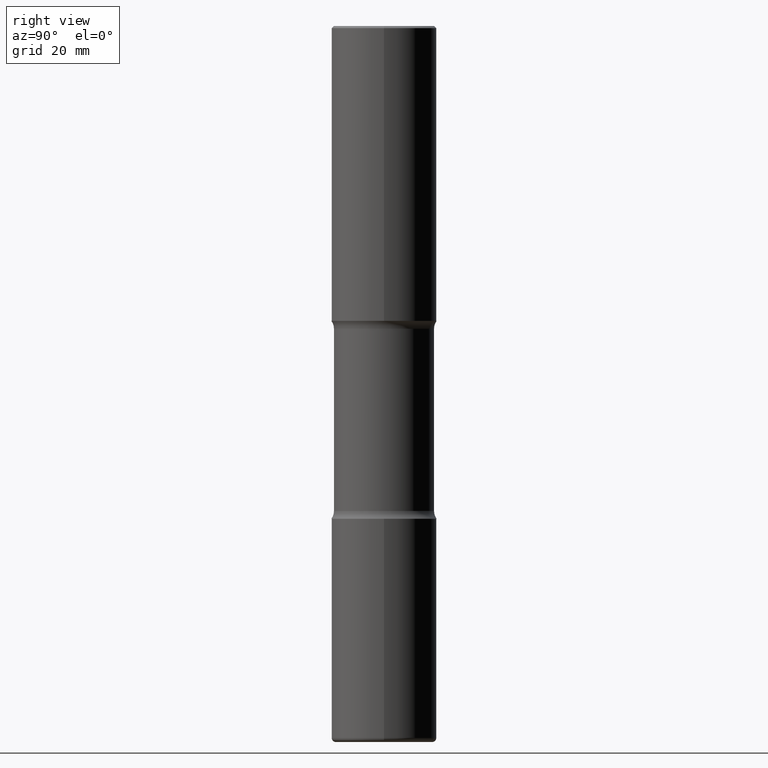
[diagram: clean part render]
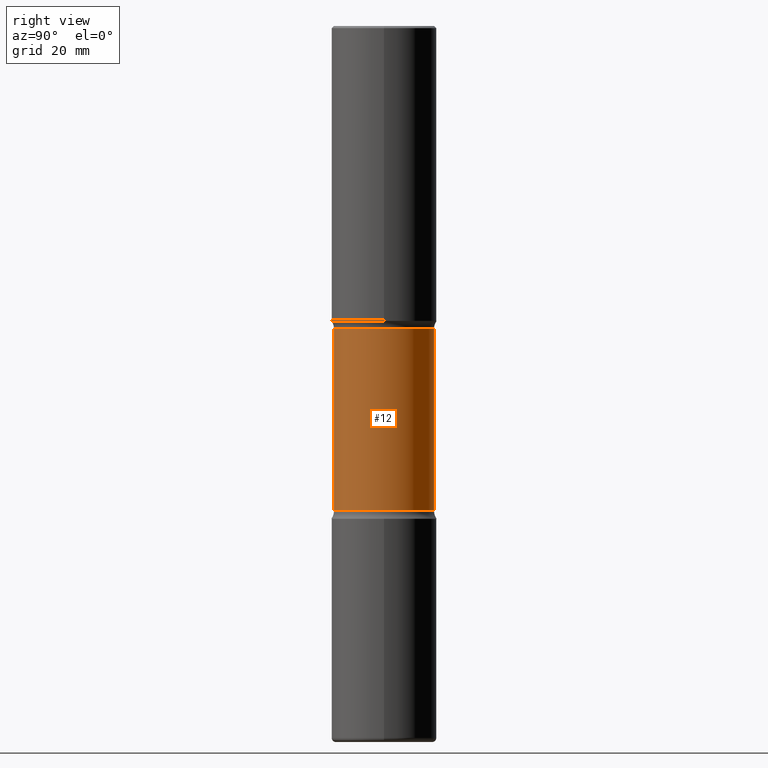
[diagram: same view with one face highlighted and labeled with its STEP entity id]
A machine part, right view. The second image highlights one B-rep face of the part: STEP entity #12.
In plain terms, the highlighted cylindrical surface (partial cylindrical patch) has radius 11.8745 mm, axis along (0, -0, -1).
Its self-contained STEP definition (entity closure, byte-faithful):
#4 = CARTESIAN_POINT ( 'NONE',  ( -3.291838451780614217E-15, -0.4675000000000157918, -4.531768949423744530 ) ) ;
#12 = ADVANCED_FACE ( 'NONE', ( #78 ), #295, .T. ) ;
#71 = CARTESIAN_POINT ( 'NONE',  ( 1.643714159041834644E-28, -2.326808706250185533E-14, -6.692899999999998961 ) ) ;
#78 = FACE_OUTER_BOUND ( 'NONE', #163, .T. ) ;
#79 = ORIENTED_EDGE ( 'NONE', *, *, #445, .F. ) ;
#92 = AXIS2_PLACEMENT_3D ( 'NONE', #71, #253, #167 ) ;
#100 = CARTESIAN_POINT ( 'NONE',  ( 1.107980415843712738E-28, -1.582616033701247086E-14, -4.531768949423746307 ) ) ;
#102 = DIRECTION ( 'NONE',  ( 2.478950746902978790E-29, -3.443533294061476764E-15, -1.000000000000000000 ) ) ;
#132 = DIRECTION ( 'NONE',  ( 2.478950746902979070E-29, -3.443533294061476764E-15, -1.000000000000000000 ) ) ;
#136 = LINE ( 'NONE', #341, #529 ) ;
#144 = ORIENTED_EDGE ( 'NONE', *, *, #184, .F. ) ;
#163 = EDGE_LOOP ( 'NONE', ( #171, #446, #79, #144 ) ) ;
#165 = VECTOR ( 'NONE', #392, 39.37007874015748143 ) ;
#167 = DIRECTION ( 'NONE',  ( 6.982962677686265922E-15, 1.000000000000000000, -2.337410048054985186E-15 ) ) ;
#171 = ORIENTED_EDGE ( 'NONE', *, *, #402, .T. ) ;
#184 = EDGE_CURVE ( 'NONE', #192, #359, #225, .T. ) ;
#190 = DIRECTION ( 'NONE',  ( 6.982962677686266711E-15, 1.000000000000000000, -3.506115072082477581E-15 ) ) ;
#192 = VERTEX_POINT ( 'NONE', #515 ) ;
#225 = LINE ( 'NONE', #384, #165 ) ;
#241 = CARTESIAN_POINT ( 'NONE',  ( 3.264535051818439654E-15, 0.4674999999999840949, -4.531768949423748083 ) ) ;
#253 = DIRECTION ( 'NONE',  ( 2.478950746902978790E-29, -3.443533294061476764E-15, -1.000000000000000000 ) ) ;
#268 = EDGE_CURVE ( 'NONE', #413, #305, #136, .T. ) ;
#295 = CYLINDRICAL_SURFACE ( 'NONE', #92, 0.4674999999999998601 ) ;
#305 = VERTEX_POINT ( 'NONE', #4 ) ;
#309 = AXIS2_PLACEMENT_3D ( 'NONE', #317, #102, #190 ) ;
#317 = CARTESIAN_POINT ( 'NONE',  ( 6.862271303354788236E-29, -9.967546637882530720E-15, -2.830431050576252883 ) ) ;
#338 = CIRCLE ( 'NONE', #309, 0.4674999999999999156 ) ;
#341 = CARTESIAN_POINT ( 'NONE',  ( -3.207282813958025392E-15, -0.4675000000000231748, -6.692899999999998073 ) ) ;
#352 = DIRECTION ( 'NONE',  ( 2.478950746902978790E-29, -3.443533294061476764E-15, -1.000000000000000000 ) ) ;
#359 = VERTEX_POINT ( 'NONE', #241 ) ;
#363 = CIRCLE ( 'NONE', #485, 0.4674999999999999156 ) ;
#384 = CARTESIAN_POINT ( 'NONE',  ( 3.264535051818492903E-15, 0.4674999999999766009, -6.692899999999999849 ) ) ;
#392 = DIRECTION ( 'NONE',  ( 2.478950746902979070E-29, -3.443533294061476764E-15, -1.000000000000000000 ) ) ;
#402 = EDGE_CURVE ( 'NONE', #192, #413, #338, .T. ) ;
#413 = VERTEX_POINT ( 'NONE', #528 ) ;
#445 = EDGE_CURVE ( 'NONE', #359, #305, #363, .T. ) ;
#446 = ORIENTED_EDGE ( 'NONE', *, *, #268, .T. ) ;
#485 = AXIS2_PLACEMENT_3D ( 'NONE', #100, #352, #488 ) ;
#488 = DIRECTION ( 'NONE',  ( 6.982962677686266711E-15, 1.000000000000000000, -3.506115072082477581E-15 ) ) ;
#515 = CARTESIAN_POINT ( 'NONE',  ( 3.264535051818397450E-15, 0.4674999999999899791, -2.830431050576254215 ) ) ;
#528 = CARTESIAN_POINT ( 'NONE',  ( -3.291838451780658393E-15, -0.4675000000000099076, -2.830431050576251106 ) ) ;
#529 = VECTOR ( 'NONE', #132, 39.37007874015748143 ) ;